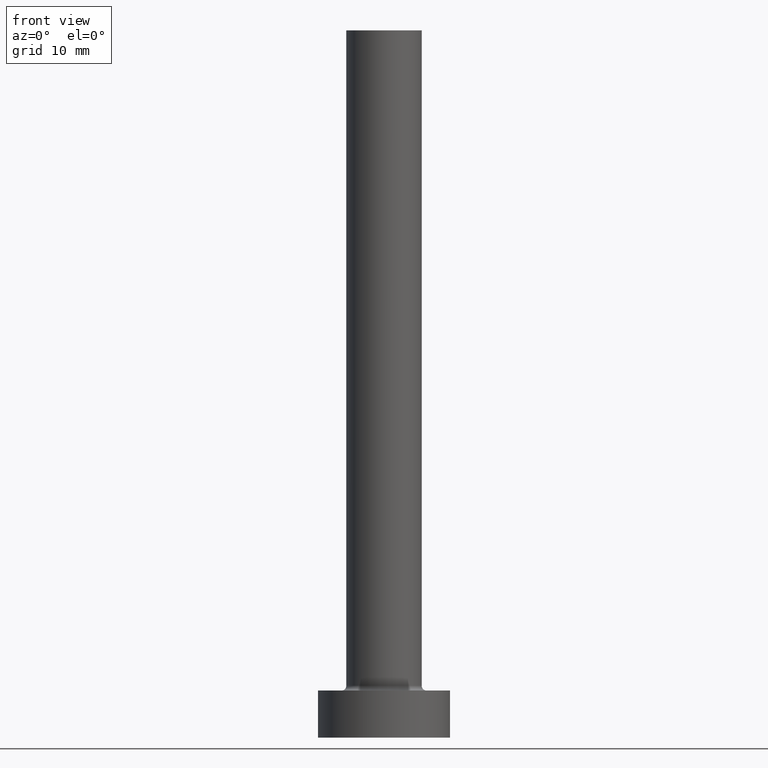
[diagram: clean part render]
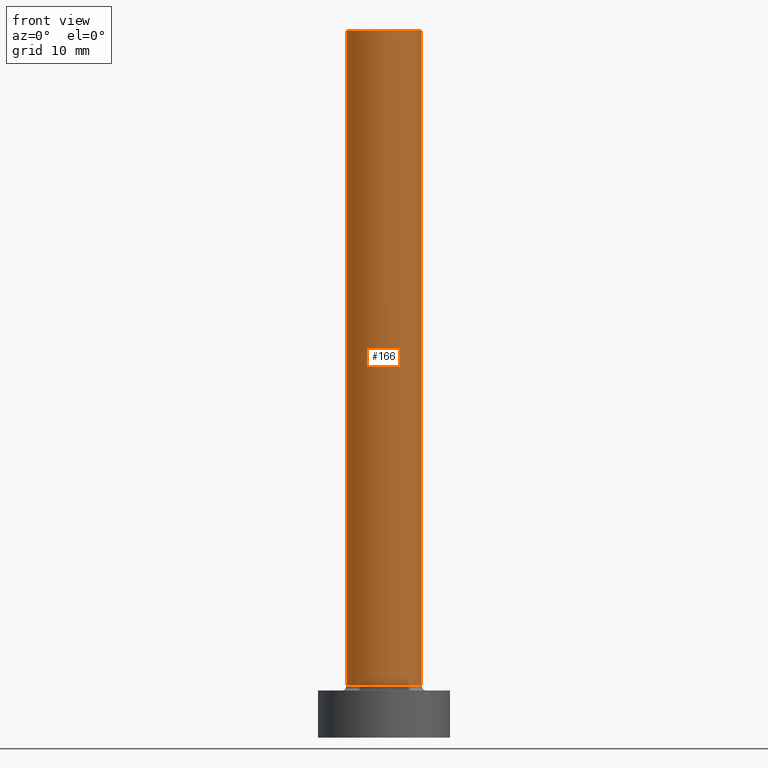
[diagram: same view with one face highlighted and labeled with its STEP entity id]
A machine part, front view. The second image highlights one B-rep face of the part: STEP entity #166.
In plain terms, the highlighted cylindrical surface (partial cylindrical patch) has radius 4 mm, axis along (-0, -0, -1).
Its self-contained STEP definition (entity closure, byte-faithful):
#3 = CARTESIAN_POINT ( 'NONE',  ( -4.000000000000000000, 0.000000000000000000, 75.00000000000001421 ) ) ;
#16 = AXIS2_PLACEMENT_3D ( 'NONE', #233, #60, #132 ) ;
#32 = VERTEX_POINT ( 'NONE', #315 ) ;
#60 = DIRECTION ( 'NONE',  ( 0.000000000000000000, 0.000000000000000000, 1.000000000000000000 ) ) ;
#66 = AXIS2_PLACEMENT_3D ( 'NONE', #390, #321, #318 ) ;
#74 = CARTESIAN_POINT ( 'NONE',  ( 0.000000000000000000, 0.000000000000000000, 75.00000000000001421 ) ) ;
#79 = CARTESIAN_POINT ( 'NONE',  ( 4.000000000000000000, 4.898587196589412829E-16, 75.00000000000001421 ) ) ;
#82 = CARTESIAN_POINT ( 'NONE',  ( -4.000000000000000000, 0.000000000000000000, 5.500000000000005329 ) ) ;
#89 = EDGE_CURVE ( 'NONE', #313, #32, #210, .T. ) ;
#132 = DIRECTION ( 'NONE',  ( 1.000000000000000000, 0.000000000000000000, 0.000000000000000000 ) ) ;
#133 = EDGE_LOOP ( 'NONE', ( #331, #142, #160, #226 ) ) ;
#142 = ORIENTED_EDGE ( 'NONE', *, *, #338, .F. ) ;
#147 = CARTESIAN_POINT ( 'NONE',  ( -4.000000000000000000, 0.000000000000000000, 75.00000000000001421 ) ) ;
#154 = LINE ( 'NONE', #79, #246 ) ;
#160 = ORIENTED_EDGE ( 'NONE', *, *, #182, .T. ) ;
#166 = ADVANCED_FACE ( 'NONE', ( #178 ), #244, .T. ) ;
#178 = FACE_OUTER_BOUND ( 'NONE', #133, .T. ) ;
#182 = EDGE_CURVE ( 'NONE', #263, #313, #290, .T. ) ;
#210 = CIRCLE ( 'NONE', #16, 4.000000000000000000 ) ;
#214 = CIRCLE ( 'NONE', #396, 4.000000000000000000 ) ;
#226 = ORIENTED_EDGE ( 'NONE', *, *, #89, .T. ) ;
#233 = CARTESIAN_POINT ( 'NONE',  ( 0.000000000000000000, 0.000000000000000000, 5.500000000000005329 ) ) ;
#244 = CYLINDRICAL_SURFACE ( 'NONE', #66, 4.000000000000000000 ) ;
#246 = VECTOR ( 'NONE', #400, 1000.000000000000000 ) ;
#263 = VERTEX_POINT ( 'NONE', #147 ) ;
#268 = DIRECTION ( 'NONE',  ( 0.000000000000000000, 0.000000000000000000, 1.000000000000000000 ) ) ;
#290 = LINE ( 'NONE', #3, #332 ) ;
#296 = VERTEX_POINT ( 'NONE', #441 ) ;
#313 = VERTEX_POINT ( 'NONE', #82 ) ;
#315 = CARTESIAN_POINT ( 'NONE',  ( 4.000000000000000000, 4.898587196589412829E-16, 5.500000000000005329 ) ) ;
#318 = DIRECTION ( 'NONE',  ( -1.000000000000000000, 0.000000000000000000, 0.000000000000000000 ) ) ;
#321 = DIRECTION ( 'NONE',  ( -0.000000000000000000, -0.000000000000000000, -1.000000000000000000 ) ) ;
#324 = DIRECTION ( 'NONE',  ( -0.000000000000000000, -0.000000000000000000, -1.000000000000000000 ) ) ;
#331 = ORIENTED_EDGE ( 'NONE', *, *, #366, .F. ) ;
#332 = VECTOR ( 'NONE', #324, 1000.000000000000000 ) ;
#338 = EDGE_CURVE ( 'NONE', #263, #296, #214, .T. ) ;
#366 = EDGE_CURVE ( 'NONE', #296, #32, #154, .T. ) ;
#390 = CARTESIAN_POINT ( 'NONE',  ( 0.000000000000000000, 0.000000000000000000, 75.00000000000001421 ) ) ;
#396 = AXIS2_PLACEMENT_3D ( 'NONE', #74, #268, #435 ) ;
#400 = DIRECTION ( 'NONE',  ( -0.000000000000000000, -0.000000000000000000, -1.000000000000000000 ) ) ;
#435 = DIRECTION ( 'NONE',  ( 1.000000000000000000, 0.000000000000000000, 0.000000000000000000 ) ) ;
#441 = CARTESIAN_POINT ( 'NONE',  ( 4.000000000000000000, 4.898587196589412829E-16, 75.00000000000001421 ) ) ;